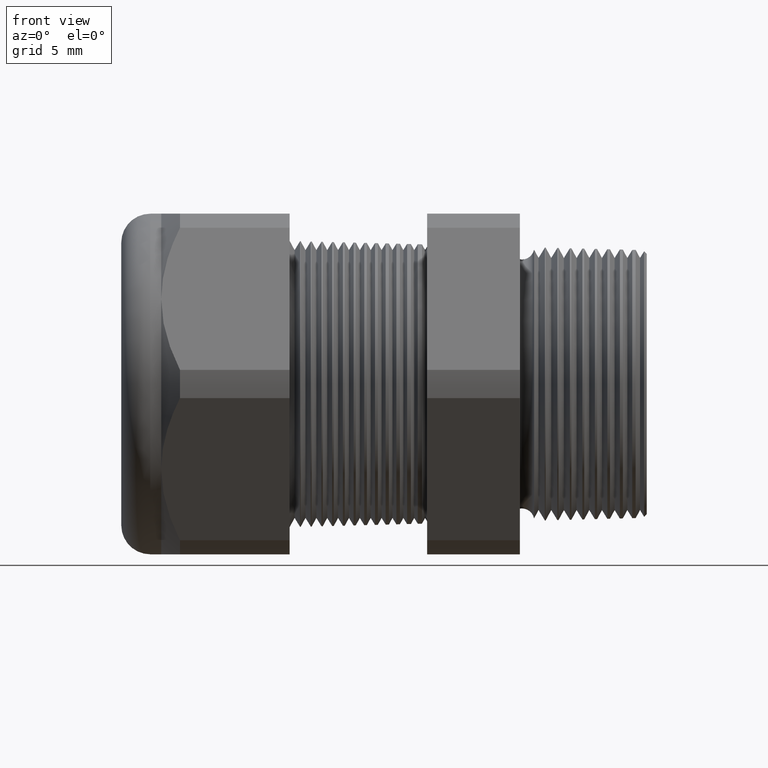
[diagram: clean part render]
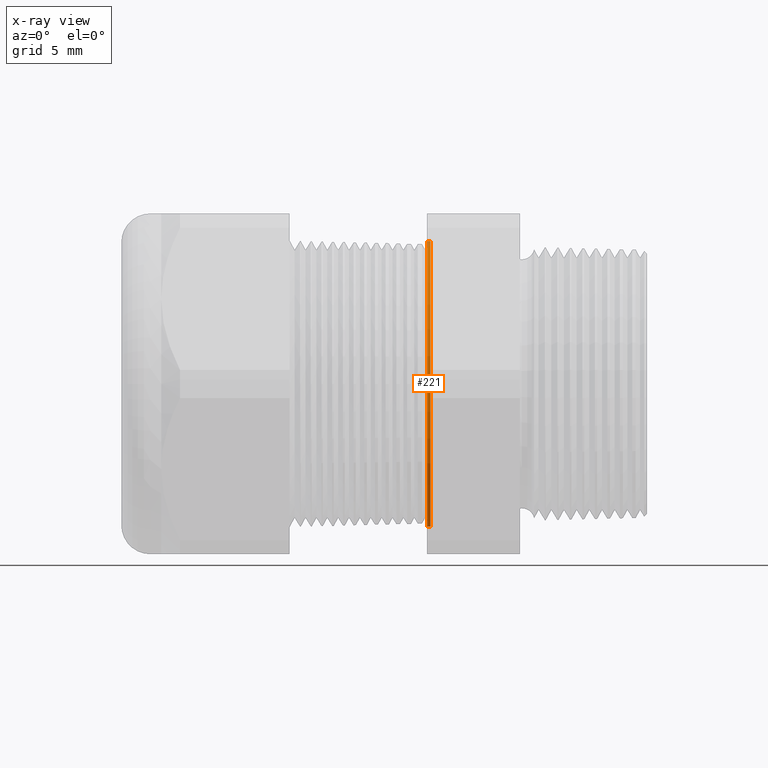
[diagram: x-ray — body ghosted, one internal face saturated and labeled with its STEP entity id]
A machine part, front view, then the same camera in x-ray: the body is ghosted and one INTERNAL B-rep face — a face not visible from any outside direction — is saturated and labeled: STEP entity #221.
In plain terms, the highlighted conical surface has half-angle 1.5 deg.
Its self-contained STEP definition (entity closure, byte-faithful):
#221 = ADVANCED_FACE ( 'NONE', ( #2172 ), #2169, .F. ) ;
#222 = EDGE_LOOP ( 'NONE', ( #223, #267, #270, #273 ) ) ;
#223 = ORIENTED_EDGE ( 'NONE', *, *, #224, .T. ) ;
#224 = EDGE_CURVE ( 'NONE', #225, #226, #2229, .T. ) ;
#225 = VERTEX_POINT ( 'NONE', #2224 ) ;
#226 = VERTEX_POINT ( 'NONE', #2223 ) ;
#267 = ORIENTED_EDGE ( 'NONE', *, *, #268, .T. ) ;
#268 = EDGE_CURVE ( 'NONE', #226, #269, #2264, .T. ) ;
#269 = VERTEX_POINT ( 'NONE', #2260 ) ;
#270 = ORIENTED_EDGE ( 'NONE', *, *, #271, .T. ) ;
#271 = EDGE_CURVE ( 'NONE', #269, #272, #2324, .T. ) ;
#272 = VERTEX_POINT ( 'NONE', #2319 ) ;
#273 = ORIENTED_EDGE ( 'NONE', *, *, #274, .F. ) ;
#274 = EDGE_CURVE ( 'NONE', #225, #272, #2318, .T. ) ;
#1914 = DIRECTION ( 'NONE',  ( 0.0000000000000000000, 0.0000000000000000000, 1.000000000000000000 ) ) ;
#2166 = DIRECTION ( 'NONE',  ( -1.000000000000000000, 0.0000000000000000000, 0.0000000000000000000 ) ) ;
#2167 = CARTESIAN_POINT ( 'NONE',  ( -0.5565754495825407900, 0.0000000000000000000, 0.0000000000000000000 ) ) ;
#2168 = AXIS2_PLACEMENT_3D ( 'NONE', #2167, #2166, #1914 ) ;
#2169 = CONICAL_SURFACE ( 'NONE', #2168, 0.3942443365923946100, 0.02617993877990548700 ) ;
#2172 = FACE_OUTER_BOUND ( 'NONE', #222, .T. ) ;
#2223 = CARTESIAN_POINT ( 'NONE',  ( -0.5565754495825407900, 0.0000000000000000000, -0.3942443365923946100 ) ) ;
#2224 = CARTESIAN_POINT ( 'NONE',  ( -0.5565754495825407900, 4.828100648898477900E-017, 0.3942443365923946100 ) ) ;
#2225 = DIRECTION ( 'NONE',  ( 0.0000000000000000000, 0.0000000000000000000, -1.000000000000000000 ) ) ;
#2226 = DIRECTION ( 'NONE',  ( 1.000000000000000000, 0.0000000000000000000, 0.0000000000000000000 ) ) ;
#2227 = CARTESIAN_POINT ( 'NONE',  ( -0.5565754495825407900, 0.0000000000000000000, 0.0000000000000000000 ) ) ;
#2228 = AXIS2_PLACEMENT_3D ( 'NONE', #2227, #2226, #2225 ) ;
#2229 = CIRCLE ( 'NONE', #2228, 0.3942443365923946100 ) ;
#2260 = CARTESIAN_POINT ( 'NONE',  ( -0.5659055118110234400, 4.831092660373746600E-017, -0.3944886528701452300 ) ) ;
#2261 = DIRECTION ( 'NONE',  ( -0.9996573249755575900, 3.205751595667100700E-018, -0.02617694830786370200 ) ) ;
#2262 = VECTOR ( 'NONE', #2261, 39.37007874015748900 ) ;
#2263 = CARTESIAN_POINT ( 'NONE',  ( -0.5565754495825407900, 4.828100648898478500E-017, -0.3942443365923946100 ) ) ;
#2264 = LINE ( 'NONE', #2263, #2262 ) ;
#2315 = DIRECTION ( 'NONE',  ( -0.9996573249755575900, 0.0000000000000000000, 0.02617694830786370200 ) ) ;
#2316 = VECTOR ( 'NONE', #2315, 39.37007874015748900 ) ;
#2317 = CARTESIAN_POINT ( 'NONE',  ( -0.5565754495825407900, 0.0000000000000000000, 0.3942443365923946100 ) ) ;
#2318 = LINE ( 'NONE', #2317, #2316 ) ;
#2319 = CARTESIAN_POINT ( 'NONE',  ( -0.5659055118110234400, 0.0000000000000000000, 0.3944886528701452300 ) ) ;
#2320 = DIRECTION ( 'NONE',  ( 0.0000000000000000000, 0.0000000000000000000, 1.000000000000000000 ) ) ;
#2321 = DIRECTION ( 'NONE',  ( -1.000000000000000000, 0.0000000000000000000, 0.0000000000000000000 ) ) ;
#2322 = CARTESIAN_POINT ( 'NONE',  ( -0.5659055118110234400, 0.0000000000000000000, 0.0000000000000000000 ) ) ;
#2323 = AXIS2_PLACEMENT_3D ( 'NONE', #2322, #2321, #2320 ) ;
#2324 = CIRCLE ( 'NONE', #2323, 0.3944886528701452800 ) ;